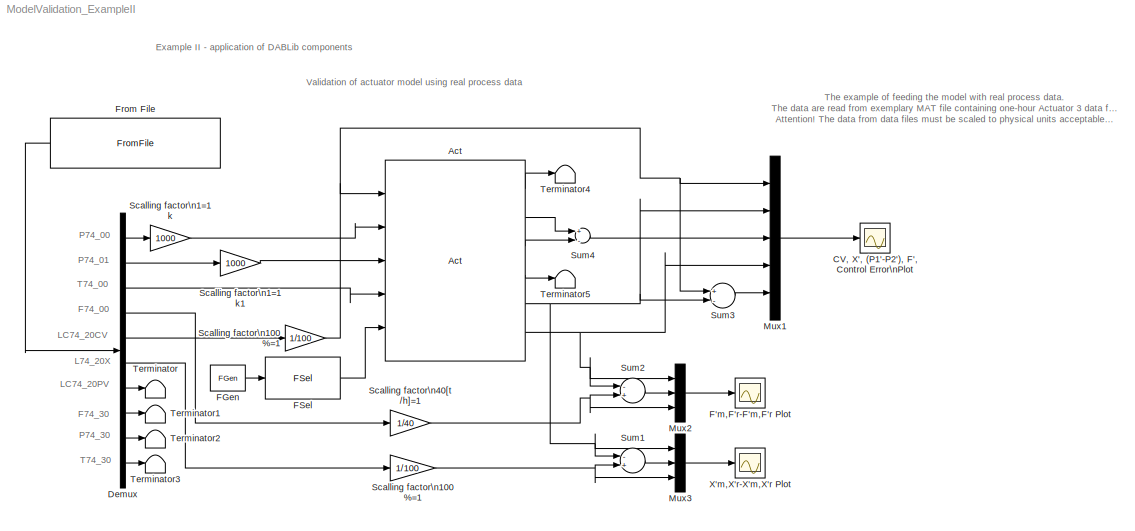
MODEL ModelValidation_ExampleII
KIND model
CONFIG AbsTol = 1e-6
CONFIG FixedStep = 0.0025
CONFIG MaxStep = auto
CONFIG RelTol = 1e-3
CONFIG Solver = ode4
CONFIG StartTime = 0.0
CONFIG StopTime = 3600
BLOCK [Reference] Act  REF=DABLib/Act
  Dist = off
  Ports = [5, 6, 0, 0, 0]
  SourceBlock = DABLib/Act
  SourceType = Actuator
BLOCK [Scope] CV, X', (P1'-P2'), F', Control Error\nPlot
  Decimation = 1
  Floating = off
  Grid = on
  LimitMaxRows = off
  MaxRows = 5000
  Ports = [1, 0, 0, 0, 0]
  SampleInput = on
  SampleTime = 0.1
  SaveName = ScopeData
  SaveToWorkspace = off
  TickLabels = on
  TimeRange = 120
  YMax = 1
  YMin = -0.2
  ZoomMode = xonly
BLOCK [Demux] Demux
  Outputs = 10
  Ports = [1, 10, 0, 0, 0]
BLOCK [Scope] F'm,F'r-F'm,F'r Plot
  Decimation = 1
  Floating = off
  Grid = on
  LimitMaxRows = off
  MaxRows = 5000
  Ports = [1, 0, 0, 0, 0]
  SampleInput = on
  SampleTime = 0.1
  SaveName = ScopeData
  SaveToWorkspace = off
  TickLabels = on
  TimeRange = 120
  YMax = 1
  YMin = -0.2
  ZoomMode = xonly
BLOCK [Reference] FGen  REF=DABLib/FGen
  FDT = 0
  FSD = 1
  From = 15
  MFS = 0.1
  Ports = [0, 1, 0, 0, 0]
  SourceBlock = DABLib/FGen
  SourceType = Fault generator
  To = inf
BLOCK [Reference] FSel  REF=DABLib/FSel
  FSel = NO FAULT
  Ports = [1, 1, 0, 0, 0]
  SourceBlock = DABLib/FSel
  SourceType = Fault vector element attribution
BLOCK [FromFile] From File
  FileName = OneHourTestData_ExampleII.mat
BLOCK [Mux] Mux1
  Inputs = 5
  Ports = [5, 1, 0, 0, 0]
BLOCK [Mux] Mux2
  Inputs = 3
  Ports = [3, 1, 0, 0, 0]
BLOCK [Mux] Mux3
  Inputs = 3
  Ports = [3, 1, 0, 0, 0]
BLOCK [Gain] Scalling factor\n100%=1
  Gain = 1/100
BLOCK [Gain] Scalling factor\n100%=1 
  Gain = 1/100
BLOCK [Gain] Scalling factor\n1=1k
  Gain = 1000
BLOCK [Gain] Scalling factor\n1=1k1
  Gain = 1000
BLOCK [Gain] Scalling factor\n40[t//h]=1
  Gain = 1/40
BLOCK [Sum] Sum1
  Inputs = -+
  Ports = [2, 1, 0, 0, 0]
BLOCK [Sum] Sum2
  Inputs = -+
  Ports = [2, 1, 0, 0, 0]
BLOCK [Sum] Sum3
  Inputs = +-
  Ports = [2, 1, 0, 0, 0]
BLOCK [Sum] Sum4
  Inputs = +-
  Ports = [2, 1, 0, 0, 0]
BLOCK [Terminator] Terminator
BLOCK [Terminator] Terminator1
BLOCK [Terminator] Terminator2
BLOCK [Terminator] Terminator3
BLOCK [Terminator] Terminator4
BLOCK [Terminator] Terminator5
BLOCK [Scope] X'm,X'r-X'm,X'r Plot
  Decimation = 1
  Floating = off
  Grid = on
  LimitMaxRows = off
  MaxRows = 5000
  Ports = [1, 0, 0, 0, 0]
  SampleInput = on
  SampleTime = 0.1
  SaveName = ScopeData
  SaveToWorkspace = off
  TickLabels = on
  TimeRange = 120
  YMax = 1
  YMin = -0.2
  ZoomMode = yonly
LINE Act:1 -> Terminator4:1
LINE Act:2 -> Sum4:1
LINE Act:3 -> Sum4:2
LINE Act:4 -> Terminator5:1
NET Act:5 -> Mux1:2, Mux3:1, Sum1:1, Sum3:2
NET Act:6 -> Mux1:4, Mux2:1, Sum2:1
LINE Demux:1 -> Scalling factor\n1=1k:1
LINE Demux:10 -> Terminator3:1
LINE Demux:2 -> Scalling factor\n1=1k1:1
LINE Demux:3 -> Act:4
LINE Demux:4 -> Scalling factor\n40[t//h]=1:1
LINE Demux:5 -> Scalling factor\n100%=1:1
LINE Demux:6 -> Scalling factor\n100%=1 :1
LINE Demux:7 -> Terminator:1
LINE Demux:8 -> Terminator1:1
LINE Demux:9 -> Terminator2:1
LINE FGen:1 -> FSel:1
LINE FSel:1 -> Act:5
LINE From File:1 -> Demux:1
LINE Mux1:1 -> CV, X', (P1'-P2'), F', Control Error\nPlot:1
LINE Mux2:1 -> F'm,F'r-F'm,F'r Plot:1
LINE Mux3:1 -> X'm,X'r-X'm,X'r Plot:1
NET Scalling factor\n100%=1 :1 -> Mux3:3, Sum1:2
NET Scalling factor\n100%=1:1 -> Act:1, Mux1:1, Sum3:1
LINE Scalling factor\n1=1k1:1 -> Act:3
LINE Scalling factor\n1=1k:1 -> Act:2
NET Scalling factor\n40[t//h]=1:1 -> Mux2:3, Sum2:2
LINE Sum1:1 -> Mux3:2
LINE Sum2:1 -> Mux2:2
LINE Sum3:1 -> Mux1:5
LINE Sum4:1 -> Mux1:3
note: NET lines group one-source signal fan-out (src -> all destinations, sorted); 1:1 wires keep LINE
